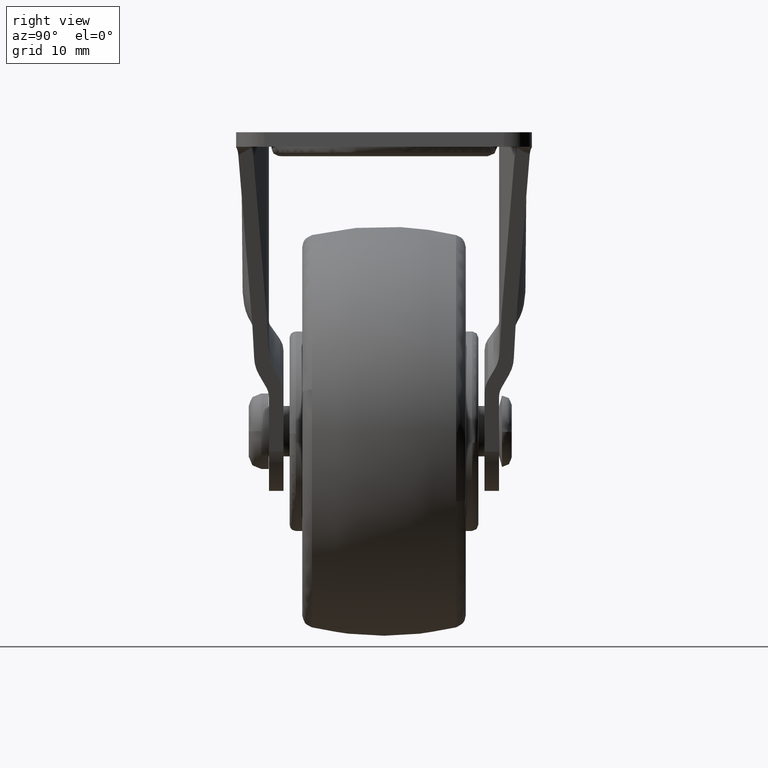
[diagram: clean part render]
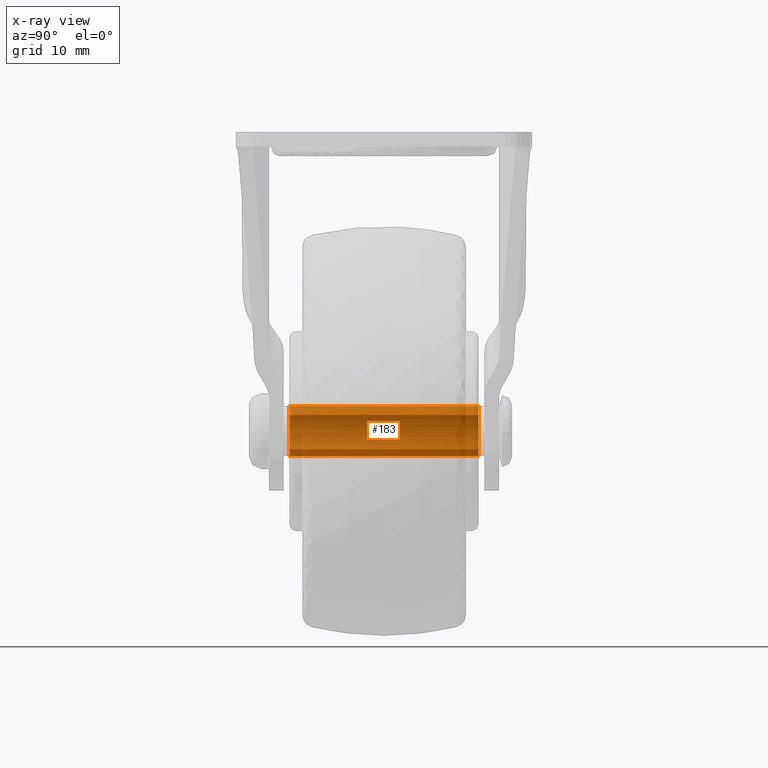
[diagram: x-ray — body ghosted, one internal face saturated and labeled with its STEP entity id]
A machine part, right view, then the same camera in x-ray: the body is ghosted and one INTERNAL B-rep face — a face not visible from any outside direction — is saturated and labeled: STEP entity #183.
In plain terms, the highlighted face is a freeform B-spline surface patch.
Its self-contained STEP definition (entity closure, byte-faithful):
#44=CARTESIAN_POINT('',(3.054222571761859,15.750000000000005,2.582968153528102));
#45=CARTESIAN_POINT('',(2.980299132926059,15.750000000000007,2.670378691349159));
#46=CARTESIAN_POINT('',(2.901497484049150,15.750000000000000,2.753418302775015));
#47=CARTESIAN_POINT('',(0.148079181274134,15.750000000000009,5.654915786824165));
#48=CARTESIAN_POINT('',(-2.753418302775015,15.750000000000000,2.901497484049150));
#49=CARTESIAN_POINT('',(-5.654915786824165,15.750000000000009,0.148079181274134));
#50=CARTESIAN_POINT('',(-2.901497484049150,15.750000000000000,-2.753418302775015));
#51=CARTESIAN_POINT('',(-0.148079181274134,15.750000000000009,-5.654915786824165));
#52=CARTESIAN_POINT('',(2.753418302775015,15.750000000000000,-2.901497484049150));
#53=CARTESIAN_POINT('',(3.054222571761859,-15.768750000000006,2.582968153528102));
#54=CARTESIAN_POINT('',(2.980299132926059,-15.768750000000006,2.670378691349159));
#55=CARTESIAN_POINT('',(2.901497484049150,-15.768750000000001,2.753418302775015));
#56=CARTESIAN_POINT('',(0.148079181274134,-15.768749999999997,5.654915786824165));
#57=CARTESIAN_POINT('',(-2.753418302775015,-15.768750000000001,2.901497484049150));
#58=CARTESIAN_POINT('',(-5.654915786824165,-15.768749999999997,0.148079181274134));
#59=CARTESIAN_POINT('',(-2.901497484049150,-15.768750000000001,-2.753418302775015));
#60=CARTESIAN_POINT('',(-0.148079181274134,-15.768749999999997,-5.654915786824165));
#61=CARTESIAN_POINT('',(2.753418302775015,-15.768750000000001,-2.901497484049150));
#69=(BOUNDED_SURFACE()B_SPLINE_SURFACE(2,1,((#44,#53),(#45,#54),(#46,#55),(#47,#56),(#48,#57),(#49,#58),(#50,#59),(#51,#60),(#52,#61)),.UNSPECIFIED.,.F.,.F.,.U.)B_SPLINE_SURFACE_WITH_KNOTS((3,2,2,2,3),(2,2),(0.0,0.265096679918781,6.892513677888300,13.519930675857820,20.147347673827340),(0.0,31.518750000000001),.UNSPECIFIED.)GEOMETRIC_REPRESENTATION_ITEM()RATIONAL_B_SPLINE_SURFACE(((0.977505800795127,0.977505800795127),(0.988284271247462,0.988284271247462),(1.0,1.0),(0.707106781186548,0.707106781186548),(1.0,1.0),(0.707106781186548,0.707106781186548),(1.0,1.0),(0.707106781186548,0.707106781186548),(1.0,1.0)))REPRESENTATION_ITEM('')SURFACE());
#70=CARTESIAN_POINT('',(3.054222801857205,15.0,2.582968348483437));
#71=VERTEX_POINT('',#70);
#72=CARTESIAN_POINT('',(0.0,15.0,4.0));
#73=VERTEX_POINT('',#72);
#74=CARTESIAN_POINT('',(3.054222801857205,15.0,2.582968348483437));
#75=CARTESIAN_POINT('',(2.704016717927104,14.999999999999989,2.998096188303050));
#76=CARTESIAN_POINT('',(1.976486673535471,15.000000000000011,3.567364939220854));
#77=CARTESIAN_POINT('',(0.868800014107006,14.999999999999980,3.941410152978961));
#78=CARTESIAN_POINT('',(0.253397200903179,14.999999999999989,4.000006335800379));
#79=CARTESIAN_POINT('',(0.0,15.0,4.0));
#80=B_SPLINE_CURVE_WITH_KNOTS('',3,(#74,#75,#76,#77,#78,#79),.UNSPECIFIED.,.F.,.U.,(4,1,1,4),(0.000000115147884,1.629073111958397,2.715090705011884,3.475313326845505),.UNSPECIFIED.);
#81=EDGE_CURVE('',#71,#73,#80,.T.);
#82=ORIENTED_EDGE('',*,*,#81,.F.);
#83=CARTESIAN_POINT('',(3.054222801857205,-15.0,2.582968348483437));
#84=VERTEX_POINT('',#83);
#85=CARTESIAN_POINT('',(3.054222801857205,15.0,2.582968348483437));
#86=CARTESIAN_POINT('',(3.054222801857205,-15.0,2.582968348483437));
#87=QUASI_UNIFORM_CURVE('',1,(#85,#86),.UNSPECIFIED.,.F.,.U.);
#88=EDGE_CURVE('',#71,#84,#87,.T.);
#89=ORIENTED_EDGE('',*,*,#88,.T.);
#90=CARTESIAN_POINT('',(0.0,-15.0,4.0));
#91=VERTEX_POINT('',#90);
#92=CARTESIAN_POINT('',(3.054222801857205,-15.0,2.582968348483437));
#93=CARTESIAN_POINT('',(2.704016717927104,-14.999999999999989,2.998096188303050));
#94=CARTESIAN_POINT('',(1.976486673535471,-15.000000000000011,3.567364939220854));
#95=CARTESIAN_POINT('',(0.868800014107006,-14.999999999999980,3.941410152978961));
#96=CARTESIAN_POINT('',(0.253397200903179,-14.999999999999989,4.000006335800379));
#97=CARTESIAN_POINT('',(0.0,-15.0,4.0));
#98=B_SPLINE_CURVE_WITH_KNOTS('',3,(#92,#93,#94,#95,#96,#97),.UNSPECIFIED.,.F.,.U.,(4,1,1,4),(0.000000115147884,1.629073111958397,2.715090705011884,3.475313326845505),.UNSPECIFIED.);
#99=EDGE_CURVE('',#84,#91,#98,.T.);
#100=ORIENTED_EDGE('',*,*,#99,.T.);
#101=CARTESIAN_POINT('',(-3.999999999999813,-15.0,-0.000001223305500));
#102=VERTEX_POINT('',#101);
#103=CARTESIAN_POINT('',(0.0,-15.0,4.0));
#104=CARTESIAN_POINT('',(-0.589254097343018,-15.000000000000020,4.000919144995991));
#105=CARTESIAN_POINT('',(-1.406569151406213,-14.999999999999980,3.815968699582129));
#106=CARTESIAN_POINT('',(-2.399746901152039,-15.0,3.236846765912496));
#107=CARTESIAN_POINT('',(-3.010506541109636,-15.000000000000011,2.683347089103513));
#108=CARTESIAN_POINT('',(-3.540689312378943,-14.999999999999989,1.930571715911711));
#109=CARTESIAN_POINT('',(-3.906593665570804,-15.000000000000011,1.047145352831876));
#110=CARTESIAN_POINT('',(-4.000129178618779,-15.000000000000011,0.359980722542695));
#111=CARTESIAN_POINT('',(-3.999999999999813,-15.0,-0.000001223305500));
#112=B_SPLINE_CURVE_WITH_KNOTS('',3,(#103,#104,#105,#106,#107,#108,#109,#110,#111),.UNSPECIFIED.,.F.,.U.,(4,1,1,1,1,1,4),(0.000000414587961,1.767192478967512,2.454486561993824,3.436130248282221,4.221592027101352,5.203423679657038,6.283343666861798),.UNSPECIFIED.);
#113=EDGE_CURVE('',#91,#102,#112,.T.);
#114=ORIENTED_EDGE('',*,*,#113,.T.);
#115=CARTESIAN_POINT('',(0.0,-15.0,-4.0));
#116=VERTEX_POINT('',#115);
#117=CARTESIAN_POINT('',(-3.999999999999813,-15.0,-0.000001223305500));
#118=CARTESIAN_POINT('',(-4.000933215268693,-14.999999999999980,-0.589245699633515));
#119=CARTESIAN_POINT('',(-3.801162607310727,-15.000000000000041,-1.471971884204495));
#120=CARTESIAN_POINT('',(-3.196343765626053,-14.999999999999970,-2.452902659898485));
#121=CARTESIAN_POINT('',(-2.471064396574958,-14.999999999999980,-3.215418250105504));
#122=CARTESIAN_POINT('',(-1.407111396562555,-15.000000000000140,-3.835266744170238));
#123=CARTESIAN_POINT('',(-0.458168519691300,-14.999999999999901,-4.000284540540576));
#124=CARTESIAN_POINT('',(0.0,-15.0,-4.0));
#125=B_SPLINE_CURVE_WITH_KNOTS('',3,(#117,#118,#119,#120,#121,#122,#123,#124),.UNSPECIFIED.,.F.,.U.,(4,1,1,1,1,4),(0.000000416261626,1.767192092555236,2.650793399419054,3.436129492843681,4.908863888383272,6.283342287876989),.UNSPECIFIED.);
#126=EDGE_CURVE('',#102,#116,#125,.T.);
#127=ORIENTED_EDGE('',*,*,#126,.T.);
#128=CARTESIAN_POINT('',(2.753417945987257,-15.0,-2.901497401594078));
#129=VERTEX_POINT('',#128);
#130=CARTESIAN_POINT('',(0.0,-15.0,-4.0));
#131=CARTESIAN_POINT('',(0.474566428972325,-15.000000000000011,-4.000338127945619));
#132=CARTESIAN_POINT('',(1.486560234101798,-14.999999999999970,-3.817666451612814));
#133=CARTESIAN_POINT('',(2.363704327659397,-15.000000000000041,-3.272199892714254));
#134=CARTESIAN_POINT('',(2.753417945987257,-15.0,-2.901497401594078));
#135=B_SPLINE_CURVE_WITH_KNOTS('',3,(#130,#131,#132,#133,#134),.UNSPECIFIED.,.F.,.U.,(4,1,4),(0.000000113901035,1.423599162455076,3.036943792351190),.UNSPECIFIED.);
#136=EDGE_CURVE('',#116,#129,#135,.T.);
#137=ORIENTED_EDGE('',*,*,#136,.T.);
#138=CARTESIAN_POINT('',(2.753417944232862,14.999999999999510,-2.901497403258937));
#139=VERTEX_POINT('',#138);
#140=CARTESIAN_POINT('',(2.753417944232862,14.999999999999510,-2.901497403258937));
#141=CARTESIAN_POINT('',(2.753417945987257,-15.0,-2.901497401594078));
#142=QUASI_UNIFORM_CURVE('',1,(#140,#141),.UNSPECIFIED.,.F.,.U.);
#143=EDGE_CURVE('',#139,#129,#142,.T.);
#144=ORIENTED_EDGE('',*,*,#143,.F.);
#145=CARTESIAN_POINT('',(0.0,15.0,-4.0));
#146=VERTEX_POINT('',#145);
#147=CARTESIAN_POINT('',(0.0,15.0,-4.0));
#148=CARTESIAN_POINT('',(0.411282511405704,14.999999999999920,-4.000190707983687));
#149=CARTESIAN_POINT('',(1.043813072489170,14.999999999999821,-3.901535233237207));
#150=CARTESIAN_POINT('',(1.982770914359407,14.999999999999650,-3.513911723944458));
#151=CARTESIAN_POINT('',(2.478152619975885,14.999999999999551,-3.162934551249840));
#152=CARTESIAN_POINT('',(2.753417944232862,14.999999999999510,-2.901497403258937));
#153=B_SPLINE_CURVE_WITH_KNOTS('',3,(#147,#148,#149,#150,#151,#152),.UNSPECIFIED.,.F.,.U.,(4,1,1,4),(0.000000113900976,1.233780237739589,1.898089270806124,3.036943789932415),.UNSPECIFIED.);
#154=EDGE_CURVE('',#146,#139,#153,.T.);
#155=ORIENTED_EDGE('',*,*,#154,.F.);
#156=CARTESIAN_POINT('',(-3.999999999999813,15.0,-0.000001223305500));
#157=VERTEX_POINT('',#156);
#158=CARTESIAN_POINT('',(-3.999999999999813,15.0,-0.000001223305500));
#159=CARTESIAN_POINT('',(-4.000933215268693,14.999999999999980,-0.589245699633515));
#160=CARTESIAN_POINT('',(-3.801162607310727,15.000000000000041,-1.471971884204495));
#161=CARTESIAN_POINT('',(-3.196343765626053,14.999999999999970,-2.452902659898485));
#162=CARTESIAN_POINT('',(-2.471064396574958,14.999999999999980,-3.215418250105504));
#163=CARTESIAN_POINT('',(-1.407111396562555,15.000000000000140,-3.835266744170238));
#164=CARTESIAN_POINT('',(-0.458168519691300,14.999999999999901,-4.000284540540576));
#165=CARTESIAN_POINT('',(0.0,15.0,-4.0));
#166=B_SPLINE_CURVE_WITH_KNOTS('',3,(#158,#159,#160,#161,#162,#163,#164,#165),.UNSPECIFIED.,.F.,.U.,(4,1,1,1,1,4),(0.000000416261626,1.767192092555236,2.650793399419054,3.436129492843681,4.908863888383272,6.283342287876989),.UNSPECIFIED.);
#167=EDGE_CURVE('',#157,#146,#166,.T.);
#168=ORIENTED_EDGE('',*,*,#167,.F.);
#169=CARTESIAN_POINT('',(0.0,15.0,4.0));
#170=CARTESIAN_POINT('',(-0.589254097343018,15.000000000000020,4.000919144995991));
#171=CARTESIAN_POINT('',(-1.406569151406213,14.999999999999980,3.815968699582129));
#172=CARTESIAN_POINT('',(-2.399746901152039,15.0,3.236846765912496));
#173=CARTESIAN_POINT('',(-3.010506541109636,15.000000000000011,2.683347089103513));
#174=CARTESIAN_POINT('',(-3.540689312378943,14.999999999999989,1.930571715911711));
#175=CARTESIAN_POINT('',(-3.906593665570804,15.000000000000011,1.047145352831876));
#176=CARTESIAN_POINT('',(-4.000129178618779,15.000000000000011,0.359980722542695));
#177=CARTESIAN_POINT('',(-3.999999999999813,15.0,-0.000001223305500));
#178=B_SPLINE_CURVE_WITH_KNOTS('',3,(#169,#170,#171,#172,#173,#174,#175,#176,#177),.UNSPECIFIED.,.F.,.U.,(4,1,1,1,1,1,4),(0.000000414587961,1.767192478967512,2.454486561993824,3.436130248282221,4.221592027101352,5.203423679657038,6.283343666861798),.UNSPECIFIED.);
#179=EDGE_CURVE('',#73,#157,#178,.T.);
#180=ORIENTED_EDGE('',*,*,#179,.F.);
#181=EDGE_LOOP('',(#82,#89,#100,#114,#127,#137,#144,#155,#168,#180));
#182=FACE_OUTER_BOUND('',#181,.T.);
#183=ADVANCED_FACE('',(#182),#69,.F.);